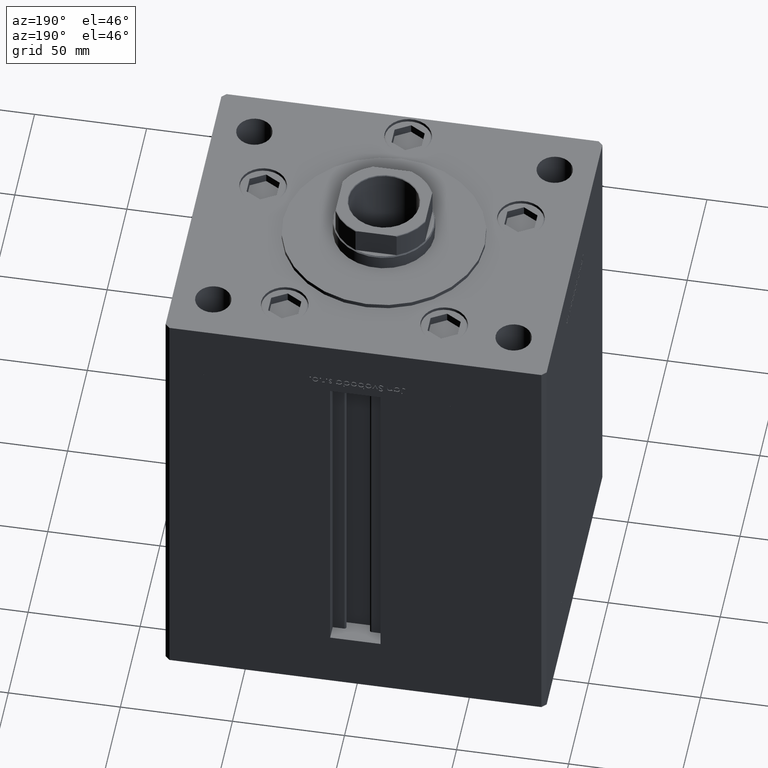
[diagram: clean part render]
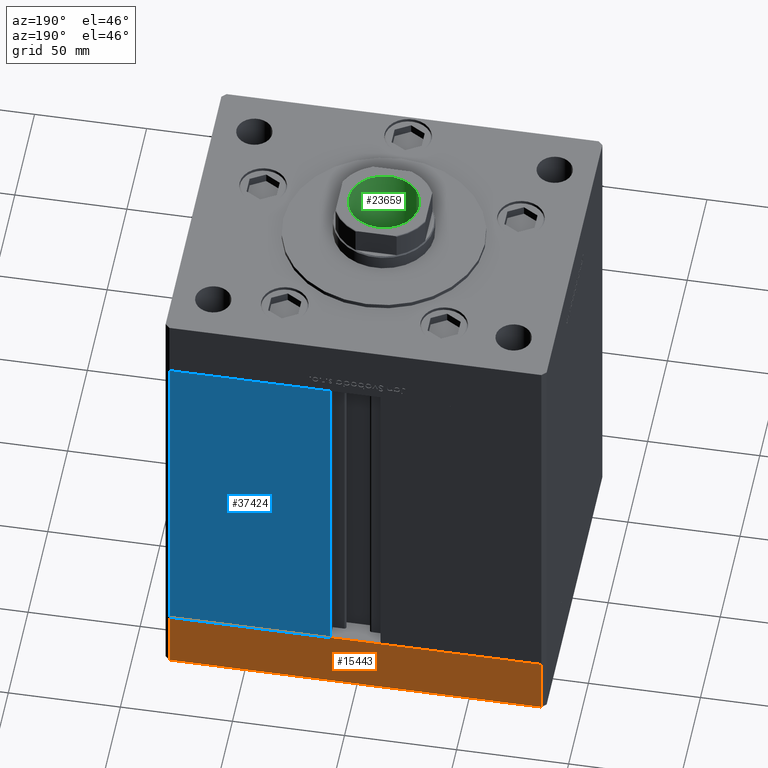
[diagram: same view with three faces highlighted in distinct colors, each labeled with its STEP entity id]
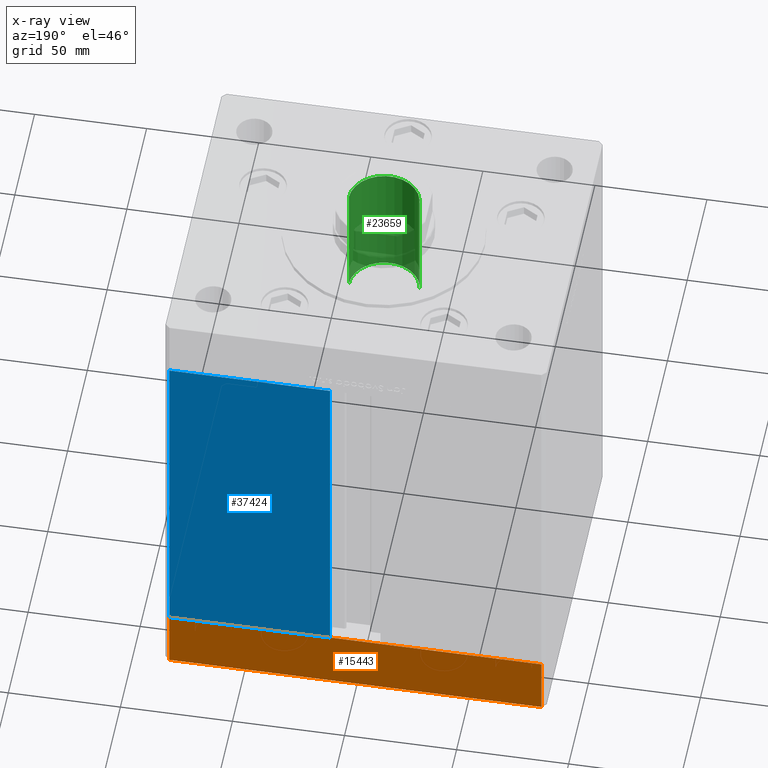
[diagram: x-ray of the same camera — body ghosted, the three highlighted faces saturated]
A machine part, auxiliary view with three faces highlighted in distinct colors.
The next image is the same camera in x-ray (body ghosted, the three faces saturated) — at least one of them is partly hidden behind the body in this view.
Their STEP definitions:

[orange] entity #15443 — the highlighted planar face has unit normal (0, 1, 0).
#19 = EDGE_CURVE ( 'NONE', #22488, #35712, #12430, .T. ) ;
#1117 = DIRECTION ( 'NONE',  ( 0.000000000000000000, 0.000000000000000000, 1.000000000000000000 ) ) ;
#1502 = ORIENTED_EDGE ( 'NONE', *, *, #19, .T. ) ;
#2069 = ORIENTED_EDGE ( 'NONE', *, *, #2294, .F. ) ;
#2294 = EDGE_CURVE ( 'NONE', #48541, #49271, #47902, .T. ) ;
#2702 = CARTESIAN_POINT ( 'NONE',  ( 82.99999999999992895, 72.50000000000002842, 0.000000000000000000 ) ) ;
#3095 = DIRECTION ( 'NONE',  ( -1.000000000000000000, -2.508033941171287983E-16, 0.000000000000000000 ) ) ;
#3186 = DIRECTION ( 'NONE',  ( -1.000000000000000000, -2.508033941171287983E-16, 0.000000000000000000 ) ) ;
#7053 = LINE ( 'NONE', #23114, #15249 ) ;
#7226 = CARTESIAN_POINT ( 'NONE',  ( -83.00000000000001421, 72.49999999999998579, 0.000000000000000000 ) ) ;
#7393 = FACE_OUTER_BOUND ( 'NONE', #48010, .T. ) ;
#10818 = DIRECTION ( 'NONE',  ( -2.508033941171287983E-16, 1.000000000000000000, 0.000000000000000000 ) ) ;
#12430 = LINE ( 'NONE', #28504, #13598 ) ;
#13598 = VECTOR ( 'NONE', #1117, 1000.000000000000000 ) ;
#13927 = ORIENTED_EDGE ( 'NONE', *, *, #21118, .F. ) ;
#15249 = VECTOR ( 'NONE', #3095, 1000.000000000000000 ) ;
#15443 = ADVANCED_FACE ( 'NONE', ( #7393 ), #51410, .T. ) ;
#18764 = DIRECTION ( 'NONE',  ( -1.000000000000000000, -2.508033941171287983E-16, 0.000000000000000000 ) ) ;
#19454 = DIRECTION ( 'NONE',  ( 0.000000000000000000, 0.000000000000000000, 1.000000000000000000 ) ) ;
#20190 = CARTESIAN_POINT ( 'NONE',  ( -83.00000000000001421, 72.49999999999998579, -27.00000000000000000 ) ) ;
#20278 = VECTOR ( 'NONE', #19454, 1000.000000000000000 ) ;
#21118 = EDGE_CURVE ( 'NONE', #49271, #35712, #42745, .T. ) ;
#22488 = VERTEX_POINT ( 'NONE', #20190 ) ;
#23114 = CARTESIAN_POINT ( 'NONE',  ( 82.99999999999992895, 72.50000000000002842, -27.00000000000000000 ) ) ;
#28504 = CARTESIAN_POINT ( 'NONE',  ( -83.00000000000001421, 72.49999999999998579, -27.00000000000000000 ) ) ;
#30845 = CARTESIAN_POINT ( 'NONE',  ( 82.99999999999992895, 72.50000000000002842, -27.00000000000000000 ) ) ;
#31781 = VECTOR ( 'NONE', #18764, 1000.000000000000000 ) ;
#35712 = VERTEX_POINT ( 'NONE', #7226 ) ;
#36970 = ORIENTED_EDGE ( 'NONE', *, *, #49236, .T. ) ;
#40744 = CARTESIAN_POINT ( 'NONE',  ( 82.99999999999992895, 72.50000000000002842, 0.000000000000000000 ) ) ;
#42745 = LINE ( 'NONE', #2702, #31781 ) ;
#44699 = CARTESIAN_POINT ( 'NONE',  ( 82.99999999999992895, 72.50000000000002842, -27.00000000000000000 ) ) ;
#47902 = LINE ( 'NONE', #48168, #20278 ) ;
#48010 = EDGE_LOOP ( 'NONE', ( #13927, #2069, #36970, #1502 ) ) ;
#48168 = CARTESIAN_POINT ( 'NONE',  ( 82.99999999999992895, 72.50000000000002842, -27.00000000000000000 ) ) ;
#48541 = VERTEX_POINT ( 'NONE', #44699 ) ;
#49236 = EDGE_CURVE ( 'NONE', #48541, #22488, #7053, .T. ) ;
#49271 = VERTEX_POINT ( 'NONE', #40744 ) ;
#50985 = AXIS2_PLACEMENT_3D ( 'NONE', #30845, #10818, #3186 ) ;
#51410 = PLANE ( 'NONE',  #50985 ) ;

[blue] entity #37424 — the highlighted planar face has unit normal (0, -1, 0).
#513 = DIRECTION ( 'NONE',  ( -1.000000000000000000, 0.000000000000000000, 0.000000000000000000 ) ) ;
#1623 = ORIENTED_EDGE ( 'NONE', *, *, #18254, .T. ) ;
#2466 = VERTEX_POINT ( 'NONE', #28152 ) ;
#2740 = DIRECTION ( 'NONE',  ( 0.000000000000000000, -1.000000000000000000, 0.000000000000000000 ) ) ;
#3223 = LINE ( 'NONE', #43781, #26644 ) ;
#8137 = DIRECTION ( 'NONE',  ( -0.000000000000000000, -0.000000000000000000, -1.000000000000000000 ) ) ;
#10528 = CARTESIAN_POINT ( 'NONE',  ( -11.25000000000000178, 72.49999999999998579, 156.0000000000000000 ) ) ;
#14827 = EDGE_CURVE ( 'NONE', #27828, #2466, #24750, .T. ) ;
#16036 = LINE ( 'NONE', #48195, #17374 ) ;
#16586 = VECTOR ( 'NONE', #513, 1000.000000000000000 ) ;
#17374 = VECTOR ( 'NONE', #8137, 1000.000000000000000 ) ;
#17990 = EDGE_CURVE ( 'NONE', #2466, #50950, #3223, .T. ) ;
#18188 = CARTESIAN_POINT ( 'NONE',  ( 83.00000000000001421, 72.49999999999998579, 156.0000000000000000 ) ) ;
#18254 = EDGE_CURVE ( 'NONE', #19194, #27828, #16036, .T. ) ;
#18271 = FACE_OUTER_BOUND ( 'NONE', #48407, .T. ) ;
#18331 = CARTESIAN_POINT ( 'NONE',  ( 11.24999999999999467, 72.49999999999998579, 156.0000000000000000 ) ) ;
#18798 = DIRECTION ( 'NONE',  ( 0.000000000000000000, -0.000000000000000000, -1.000000000000000000 ) ) ;
#19194 = VERTEX_POINT ( 'NONE', #18188 ) ;
#24750 = LINE ( 'NONE', #32381, #16586 ) ;
#26214 = AXIS2_PLACEMENT_3D ( 'NONE', #38834, #2740, #18798 ) ;
#26644 = VECTOR ( 'NONE', #31665, 1000.000000000000000 ) ;
#27828 = VERTEX_POINT ( 'NONE', #34755 ) ;
#28152 = CARTESIAN_POINT ( 'NONE',  ( 11.25000000000000178, 72.49999999999998579, 0.000000000000000000 ) ) ;
#29770 = ORIENTED_EDGE ( 'NONE', *, *, #41410, .T. ) ;
#31665 = DIRECTION ( 'NONE',  ( -0.000000000000000000, -0.000000000000000000, 1.000000000000000000 ) ) ;
#32381 = CARTESIAN_POINT ( 'NONE',  ( -11.25000000000000178, 72.49999999999998579, 0.000000000000000000 ) ) ;
#34755 = CARTESIAN_POINT ( 'NONE',  ( 83.00000000000001421, 72.49999999999998579, 0.000000000000000000 ) ) ;
#35027 = LINE ( 'NONE', #10528, #51583 ) ;
#37424 = ADVANCED_FACE ( 'NONE', ( #18271 ), #42780, .F. ) ;
#38068 = ORIENTED_EDGE ( 'NONE', *, *, #14827, .T. ) ;
#38834 = CARTESIAN_POINT ( 'NONE',  ( -11.25000000000000178, 72.49999999999998579, 156.0000000000000000 ) ) ;
#41410 = EDGE_CURVE ( 'NONE', #50950, #19194, #35027, .T. ) ;
#41544 = ORIENTED_EDGE ( 'NONE', *, *, #17990, .T. ) ;
#42780 = PLANE ( 'NONE',  #26214 ) ;
#42932 = DIRECTION ( 'NONE',  ( 1.000000000000000000, 0.000000000000000000, 0.000000000000000000 ) ) ;
#43781 = CARTESIAN_POINT ( 'NONE',  ( 11.25000000000000178, 72.49999999999998579, 0.000000000000000000 ) ) ;
#48195 = CARTESIAN_POINT ( 'NONE',  ( 83.00000000000001421, 72.49999999999998579, 156.0000000000000000 ) ) ;
#48407 = EDGE_LOOP ( 'NONE', ( #38068, #41544, #29770, #1623 ) ) ;
#50950 = VERTEX_POINT ( 'NONE', #18331 ) ;
#51583 = VECTOR ( 'NONE', #42932, 1000.000000000000000 ) ;

[green] entity #23659 — the highlighted cylindrical surface (edge-blend (fillet) strip) has radius 15.75 mm, axis along (0, 0, 1).
#4020 = VERTEX_POINT ( 'NONE', #34376 ) ;
#4311 = DIRECTION ( 'NONE',  ( 1.000000000000000000, 0.000000000000000000, 0.000000000000000000 ) ) ;
#6642 = CARTESIAN_POINT ( 'NONE',  ( 0.000000000000000000, 0.000000000000000000, 193.0000000000000000 ) ) ;
#7367 = CARTESIAN_POINT ( 'NONE',  ( 15.74999999999999289, 0.000000000000000000, 192.6999999999999602 ) ) ;
#7917 = ORIENTED_EDGE ( 'NONE', *, *, #31098, .F. ) ;
#10587 = CYLINDRICAL_SURFACE ( 'NONE', #49511, 15.74999999999999289 ) ;
#12741 = DIRECTION ( 'NONE',  ( 1.000000000000000000, 0.000000000000000000, 0.000000000000000000 ) ) ;
#16821 = LINE ( 'NONE', #41070, #18522 ) ;
#17654 = ORIENTED_EDGE ( 'NONE', *, *, #33526, .F. ) ;
#18522 = VECTOR ( 'NONE', #33425, 1000.000000000000000 ) ;
#20370 = CARTESIAN_POINT ( 'NONE',  ( 0.000000000000000000, 0.000000000000000000, 138.0000000000000000 ) ) ;
#20933 = ORIENTED_EDGE ( 'NONE', *, *, #45614, .T. ) ;
#21078 = AXIS2_PLACEMENT_3D ( 'NONE', #37502, #33798, #12741 ) ;
#23659 = ADVANCED_FACE ( 'NONE', ( #46690 ), #10587, .F. ) ;
#25296 = ORIENTED_EDGE ( 'NONE', *, *, #46544, .T. ) ;
#28520 = VERTEX_POINT ( 'NONE', #50666 ) ;
#29017 = VERTEX_POINT ( 'NONE', #7367 ) ;
#31098 = EDGE_CURVE ( 'NONE', #51609, #4020, #32870, .T. ) ;
#31401 = DIRECTION ( 'NONE',  ( -0.000000000000000000, -0.000000000000000000, 1.000000000000000000 ) ) ;
#32870 = CIRCLE ( 'NONE', #37951, 15.74999999999998934 ) ;
#33425 = DIRECTION ( 'NONE',  ( -0.000000000000000000, -0.000000000000000000, 1.000000000000000000 ) ) ;
#33526 = EDGE_CURVE ( 'NONE', #4020, #29017, #16821, .T. ) ;
#33798 = DIRECTION ( 'NONE',  ( 0.000000000000000000, 0.000000000000000000, 1.000000000000000000 ) ) ;
#34376 = CARTESIAN_POINT ( 'NONE',  ( 15.74999999999998934, 0.000000000000000000, 138.0000000000000000 ) ) ;
#35344 = CARTESIAN_POINT ( 'NONE',  ( -15.74999999999999289, 1.928818708657080556E-15, 193.0000000000000000 ) ) ;
#37502 = CARTESIAN_POINT ( 'NONE',  ( 0.000000000000000000, 0.000000000000000000, 192.6999999999999602 ) ) ;
#37754 = DIRECTION ( 'NONE',  ( 1.000000000000000000, 0.000000000000000000, 0.000000000000000000 ) ) ;
#37951 = AXIS2_PLACEMENT_3D ( 'NONE', #20370, #41448, #4311 ) ;
#38683 = VECTOR ( 'NONE', #31401, 1000.000000000000000 ) ;
#41070 = CARTESIAN_POINT ( 'NONE',  ( 15.74999999999999289, 0.000000000000000000, 193.0000000000000000 ) ) ;
#41448 = DIRECTION ( 'NONE',  ( -0.000000000000000000, -0.000000000000000000, 1.000000000000000000 ) ) ;
#43000 = DIRECTION ( 'NONE',  ( -0.000000000000000000, -0.000000000000000000, 1.000000000000000000 ) ) ;
#43161 = EDGE_LOOP ( 'NONE', ( #7917, #20933, #25296, #17654 ) ) ;
#44633 = CIRCLE ( 'NONE', #21078, 15.74999999999999289 ) ;
#45614 = EDGE_CURVE ( 'NONE', #51609, #28520, #51173, .T. ) ;
#46544 = EDGE_CURVE ( 'NONE', #28520, #29017, #44633, .T. ) ;
#46690 = FACE_OUTER_BOUND ( 'NONE', #43161, .T. ) ;
#49511 = AXIS2_PLACEMENT_3D ( 'NONE', #6642, #43000, #37754 ) ;
#50058 = CARTESIAN_POINT ( 'NONE',  ( -15.74999999999998934, 1.928818708657080161E-15, 138.0000000000000000 ) ) ;
#50666 = CARTESIAN_POINT ( 'NONE',  ( -15.74999999999999289, 1.928818708657080556E-15, 192.6999999999999602 ) ) ;
#51173 = LINE ( 'NONE', #35344, #38683 ) ;
#51609 = VERTEX_POINT ( 'NONE', #50058 ) ;